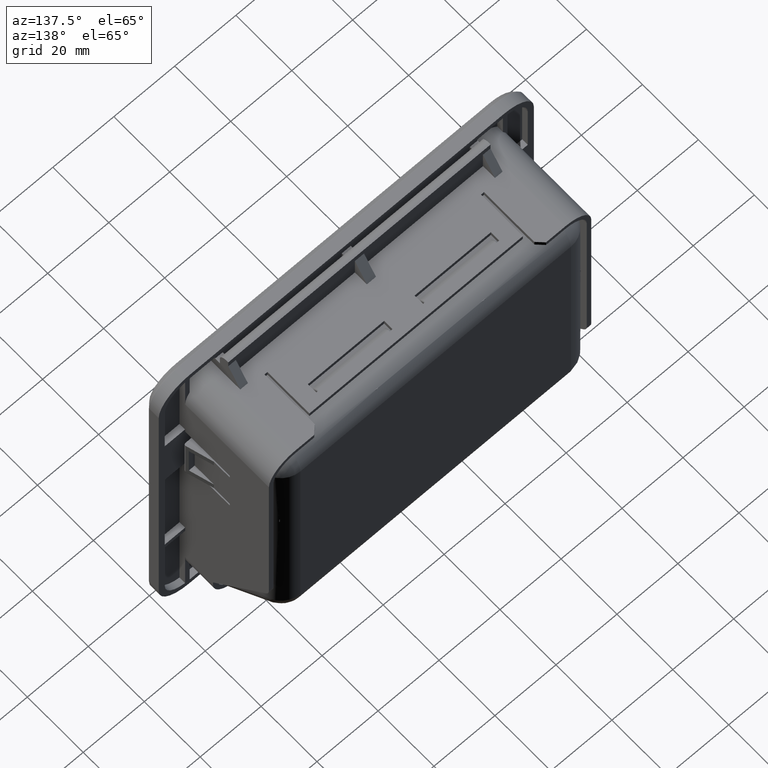
[diagram: clean part render]
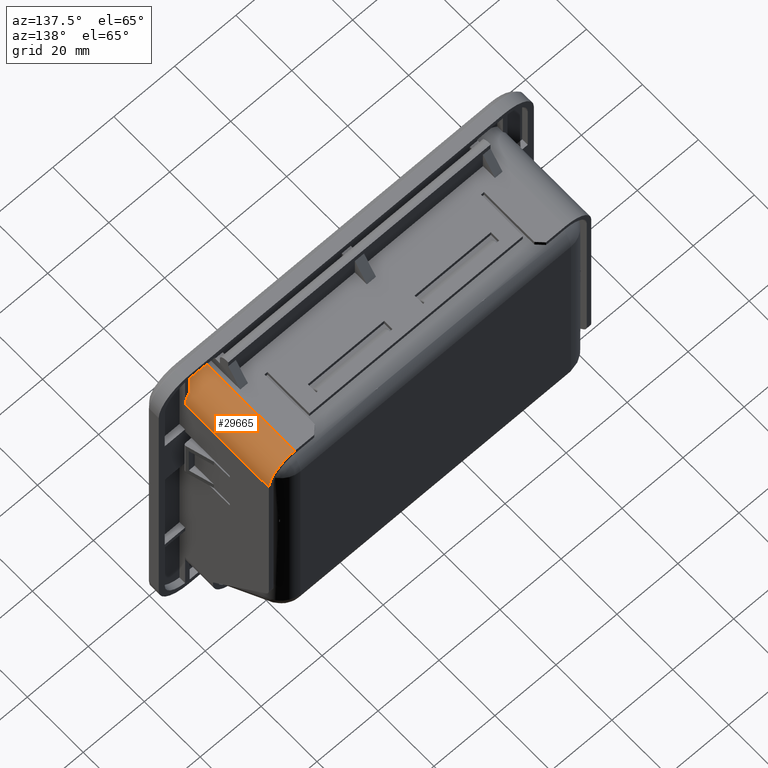
[diagram: same view with one face highlighted and labeled with its STEP entity id]
A machine part, auxiliary view. The second image highlights one B-rep face of the part: STEP entity #29665.
In plain terms, the highlighted cylindrical surface (edge-blend (fillet) strip) has radius 8.5 mm, axis along (0, -1, -0).
Its self-contained STEP definition (entity closure, byte-faithful):
#2053 = LINE ( 'NONE', #39854, #35458 ) ;
#2864 = CARTESIAN_POINT ( 'NONE',  ( 44.35000000000000100, 35.00000000000000000, 44.30000000151154200 ) ) ;
#4229 = VECTOR ( 'NONE', #8455, 1000.000000000000000 ) ;
#4320 = AXIS2_PLACEMENT_3D ( 'NONE', #32629, #13209, #35845 ) ;
#4587 = VERTEX_POINT ( 'NONE', #15673 ) ;
#5170 = CARTESIAN_POINT ( 'NONE',  ( 52.85000000000000100, 38.20000000000000300, 44.30000000150000300 ) ) ;
#5846 = DIRECTION ( 'NONE',  ( 0.0000000000000000000, -1.000000000000000000, -7.211823730789999700E-013 ) ) ;
#6116 = DIRECTION ( 'NONE',  ( 0.0000000000000000000, 7.208286255470685800E-013, -1.000000000000000000 ) ) ;
#6522 = AXIS2_PLACEMENT_3D ( 'NONE', #25272, #5846, #28497 ) ;
#8455 = DIRECTION ( 'NONE',  ( 0.0000000000000000000, 1.000000000000000000, -0.0000000000000000000 ) ) ;
#8703 = DIRECTION ( 'NONE',  ( 0.0000000000000000000, -1.000000000000000000, -7.211823730789999700E-013 ) ) ;
#8843 = DIRECTION ( 'NONE',  ( 0.0000000000000000000, 7.212367957767101700E-013, -1.000000000000000000 ) ) ;
#9647 = EDGE_CURVE ( 'NONE', #30848, #14604, #25508, .T. ) ;
#10684 = EDGE_CURVE ( 'NONE', #19138, #14604, #2053, .T. ) ;
#12846 = LINE ( 'NONE', #5170, #4229 ) ;
#12875 = EDGE_CURVE ( 'NONE', #39781, #21500, #41763, .T. ) ;
#13209 = DIRECTION ( 'NONE',  ( -0.0000000000000000000, 1.000000000000000000, 7.211823730789999700E-013 ) ) ;
#13587 = ORIENTED_EDGE ( 'NONE', *, *, #19016, .T. ) ;
#14471 = CYLINDRICAL_SURFACE ( 'NONE', #38167, 8.500000000000000000 ) ;
#14604 = VERTEX_POINT ( 'NONE', #24159 ) ;
#15545 = DIRECTION ( 'NONE',  ( 0.0000000000000000000, -1.000000000000000000, -7.211823730789999700E-013 ) ) ;
#15673 = CARTESIAN_POINT ( 'NONE',  ( 44.35000000000000100, 2.999999999999999100, 52.80000000149538400 ) ) ;
#15758 = ORIENTED_EDGE ( 'NONE', *, *, #12875, .T. ) ;
#16408 = ORIENTED_EDGE ( 'NONE', *, *, #26400, .T. ) ;
#17282 = AXIS2_PLACEMENT_3D ( 'NONE', #2864, #25525, #6116 ) ;
#19016 = EDGE_CURVE ( 'NONE', #30848, #39781, #12846, .T. ) ;
#19138 = VERTEX_POINT ( 'NONE', #35583 ) ;
#20547 = DIRECTION ( 'NONE',  ( 0.0000000000000000000, 1.000000000000000000, 0.0000000000000000000 ) ) ;
#21500 = VERTEX_POINT ( 'NONE', #41370 ) ;
#21918 = EDGE_LOOP ( 'NONE', ( #31670, #13587, #15758, #16408, #32682, #28247 ) ) ;
#22021 = CARTESIAN_POINT ( 'NONE',  ( 44.35000000000000100, 18.99999999999386800, 52.80000000150000300 ) ) ;
#24159 = CARTESIAN_POINT ( 'NONE',  ( 51.34999999980009000, 5.000000000001740800, 49.12182538158836600 ) ) ;
#25272 = CARTESIAN_POINT ( 'NONE',  ( 44.35000000000000100, 5.000000000003479000, 44.30000000148990600 ) ) ;
#25508 = CIRCLE ( 'NONE', #6522, 8.500000000000000000 ) ;
#25525 = DIRECTION ( 'NONE',  ( 0.0000000000000000000, -1.000000000000000000, -7.211823730789999700E-013 ) ) ;
#25654 = EDGE_CURVE ( 'NONE', #4587, #19138, #29371, .T. ) ;
#26400 = EDGE_CURVE ( 'NONE', #21500, #4587, #32157, .T. ) ;
#27842 = CARTESIAN_POINT ( 'NONE',  ( 52.85000000000000900, 5.000000000001739100, 44.30000000149495100 ) ) ;
#28247 = ORIENTED_EDGE ( 'NONE', *, *, #10684, .T. ) ;
#28497 = DIRECTION ( 'NONE',  ( 0.0000000000000000000, 7.211347532192998000E-013, -1.000000000000000000 ) ) ;
#29371 = CIRCLE ( 'NONE', #4320, 8.500000000000000000 ) ;
#29665 = ADVANCED_FACE ( 'NONE', ( #34741 ), #14471, .T. ) ;
#30848 = VERTEX_POINT ( 'NONE', #27842 ) ;
#31670 = ORIENTED_EDGE ( 'NONE', *, *, #9647, .F. ) ;
#32157 = LINE ( 'NONE', #22021, #39694 ) ;
#32629 = CARTESIAN_POINT ( 'NONE',  ( 44.35000000000000100, 3.000000000006129800, 44.30000000148846300 ) ) ;
#32682 = ORIENTED_EDGE ( 'NONE', *, *, #25654, .T. ) ;
#34741 = FACE_OUTER_BOUND ( 'NONE', #21918, .T. ) ;
#35458 = VECTOR ( 'NONE', #20547, 1000.000000000000000 ) ;
#35583 = CARTESIAN_POINT ( 'NONE',  ( 51.34999999980018300, 3.000000000003065100, 49.12182538158751300 ) ) ;
#35845 = DIRECTION ( 'NONE',  ( -1.632680918566406600E-015, 7.211857744980049300E-013, -1.000000000000000000 ) ) ;
#37807 = CARTESIAN_POINT ( 'NONE',  ( 44.35000000000000100, 19.00000000000000000, 44.30000000150000300 ) ) ;
#38167 = AXIS2_PLACEMENT_3D ( 'NONE', #37807, #8703, #8843 ) ;
#39694 = VECTOR ( 'NONE', #15545, 1000.000000000000000 ) ;
#39781 = VERTEX_POINT ( 'NONE', #40303 ) ;
#39854 = CARTESIAN_POINT ( 'NONE',  ( 51.34999999980018300, 5.200000000000001100, 49.12182538089999900 ) ) ;
#40303 = CARTESIAN_POINT ( 'NONE',  ( 52.85000000000000100, 35.00000000000000000, 44.30000000150577200 ) ) ;
#41370 = CARTESIAN_POINT ( 'NONE',  ( 44.35000000000000100, 34.99999999999386800, 52.80000000150576500 ) ) ;
#41763 = CIRCLE ( 'NONE', #17282, 8.500000000000000000 ) ;